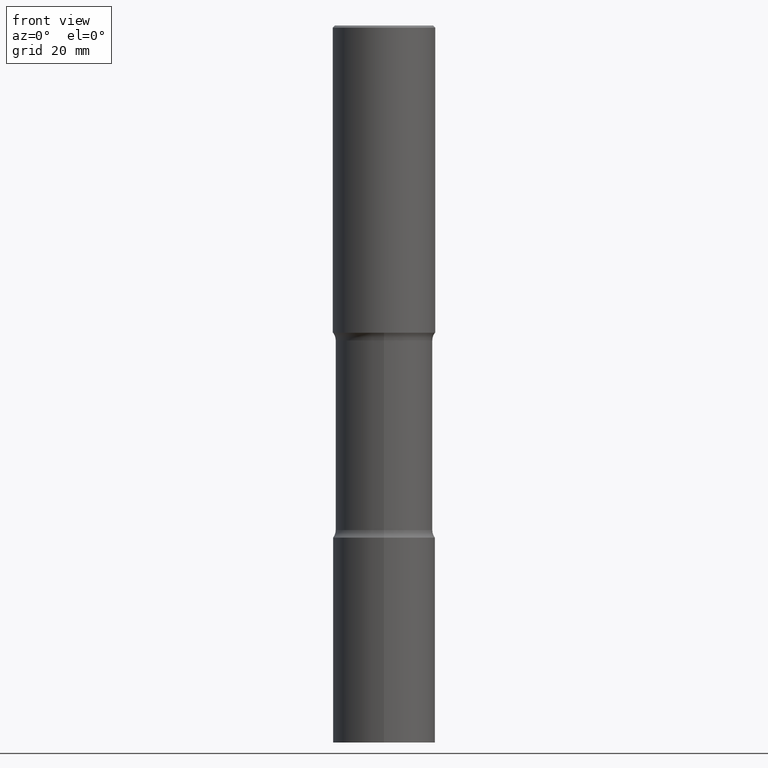
[diagram: clean part render]
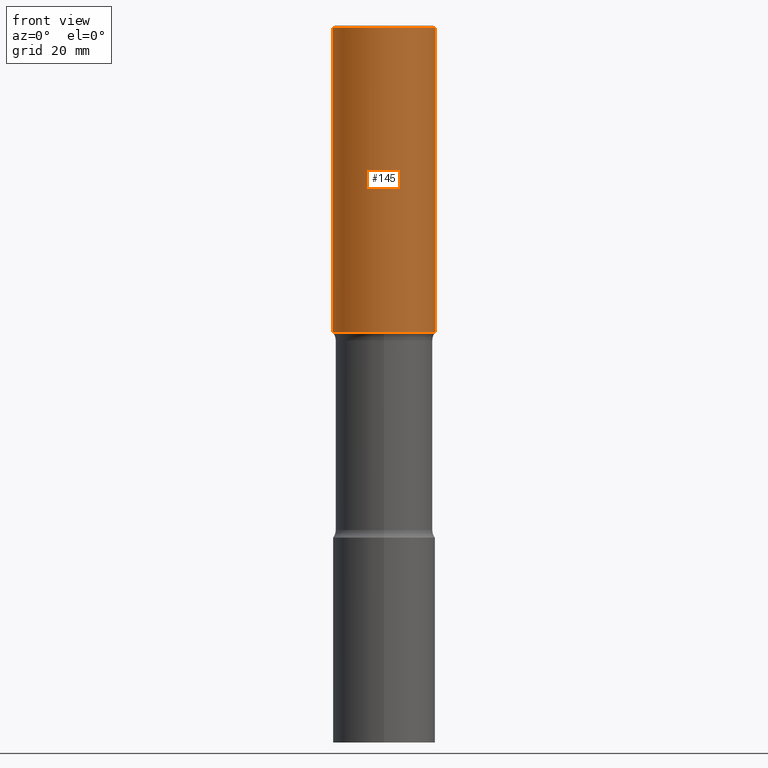
[diagram: same view with one face highlighted and labeled with its STEP entity id]
A machine part, front view. The second image highlights one B-rep face of the part: STEP entity #145.
In plain terms, the highlighted cylindrical surface (partial cylindrical patch) has radius 12.7 mm, axis along (-0, 0, 1).
Its self-contained STEP definition (entity closure, byte-faithful):
#5 = EDGE_CURVE ( 'NONE', #496, #492, #201, .T. ) ;
#6 = CARTESIAN_POINT ( 'NONE',  ( -0.4999999999999998335, 3.552713678800499746E-15, -2.459467545127452330E-29 ) ) ;
#9 = DIRECTION ( 'NONE',  ( 1.000000000000000000, -6.982962677686266711E-15, 0.000000000000000000 ) ) ;
#18 = VECTOR ( 'NONE', #403, 39.37007874015748143 ) ;
#55 = AXIS2_PLACEMENT_3D ( 'NONE', #323, #399, #131 ) ;
#63 = ORIENTED_EDGE ( 'NONE', *, *, #5, .T. ) ;
#131 = DIRECTION ( 'NONE',  ( 1.000000000000000000, -6.982962677686267499E-15, 4.876176775795936353E-29 ) ) ;
#132 = CIRCLE ( 'NONE', #437, 0.4999999999999997224 ) ;
#145 = ADVANCED_FACE ( 'NONE', ( #408 ), #332, .T. ) ;
#159 = ORIENTED_EDGE ( 'NONE', *, *, #161, .F. ) ;
#161 = EDGE_CURVE ( 'NONE', #416, #458, #363, .T. ) ;
#167 = DIRECTION ( 'NONE',  ( -2.445468806185136597E-29, 3.491481338843145583E-15, 1.000000000000000000 ) ) ;
#179 = VECTOR ( 'NONE', #311, 39.37007874015748143 ) ;
#188 = EDGE_CURVE ( 'NONE', #458, #492, #132, .T. ) ;
#195 = DIRECTION ( 'NONE',  ( -2.445468806185136597E-29, 3.491481338843145583E-15, 1.000000000000000000 ) ) ;
#201 = LINE ( 'NONE', #425, #179 ) ;
#232 = CARTESIAN_POINT ( 'NONE',  ( 7.336406418555408669E-29, -1.047444401652943478E-14, -2.999999999999999556 ) ) ;
#263 = EDGE_LOOP ( 'NONE', ( #159, #501, #63, #432 ) ) ;
#289 = CARTESIAN_POINT ( 'NONE',  ( 4.890937612370298557E-31, -6.982962677686327354E-17, -0.02000000000000010103 ) ) ;
#311 = DIRECTION ( 'NONE',  ( -2.445468806185136877E-29, 3.491481338843145188E-15, 1.000000000000000000 ) ) ;
#323 = CARTESIAN_POINT ( 'NONE',  ( 0.000000000000000000, 0.000000000000000000, 0.000000000000000000 ) ) ;
#327 = EDGE_CURVE ( 'NONE', #416, #496, #484, .T. ) ;
#332 = CYLINDRICAL_SURFACE ( 'NONE', #55, 0.4999999999999998335 ) ;
#346 = CARTESIAN_POINT ( 'NONE',  ( -0.5000000000000000000, -1.719423142852647319E-15, -2.999999999999999556 ) ) ;
#353 = CARTESIAN_POINT ( 'NONE',  ( 0.4999999999999997224, -3.500078625662627502E-15, -0.02000000000000010103 ) ) ;
#363 = LINE ( 'NONE', #6, #18 ) ;
#370 = AXIS2_PLACEMENT_3D ( 'NONE', #232, #195, #415 ) ;
#396 = CARTESIAN_POINT ( 'NONE',  ( -0.4999999999999997224, 3.421651712066268085E-15, -0.02000000000000010103 ) ) ;
#399 = DIRECTION ( 'NONE',  ( -2.445468806185136597E-29, 3.491481338843145583E-15, 1.000000000000000000 ) ) ;
#403 = DIRECTION ( 'NONE',  ( -2.445468806185136877E-29, 3.491481338843145188E-15, 1.000000000000000000 ) ) ;
#408 = FACE_OUTER_BOUND ( 'NONE', #263, .T. ) ;
#415 = DIRECTION ( 'NONE',  ( 1.000000000000000000, -6.982962677686266711E-15, 0.000000000000000000 ) ) ;
#416 = VERTEX_POINT ( 'NONE', #346 ) ;
#425 = CARTESIAN_POINT ( 'NONE',  ( 0.4999999999999998335, -3.491481338843132566E-15, 2.438088387897967336E-29 ) ) ;
#432 = ORIENTED_EDGE ( 'NONE', *, *, #188, .F. ) ;
#437 = AXIS2_PLACEMENT_3D ( 'NONE', #289, #167, #9 ) ;
#458 = VERTEX_POINT ( 'NONE', #396 ) ;
#484 = CIRCLE ( 'NONE', #370, 0.5000000000000000000 ) ;
#492 = VERTEX_POINT ( 'NONE', #353 ) ;
#496 = VERTEX_POINT ( 'NONE', #508 ) ;
#501 = ORIENTED_EDGE ( 'NONE', *, *, #327, .T. ) ;
#508 = CARTESIAN_POINT ( 'NONE',  ( 0.5000000000000000000, -1.396592535537256813E-14, -2.999999999999999556 ) ) ;